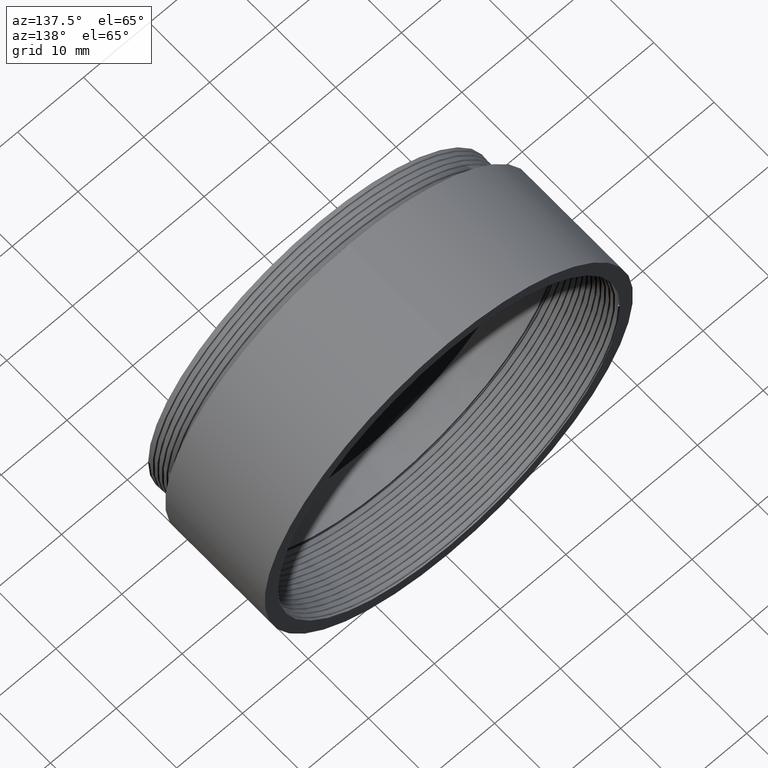
[diagram: clean part render]
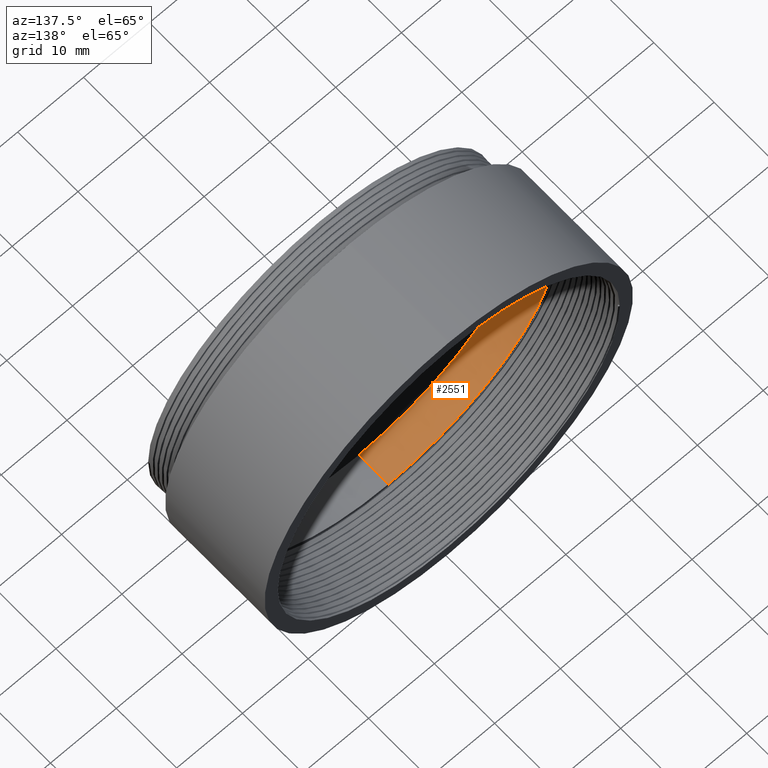
[diagram: same view with one face highlighted and labeled with its STEP entity id]
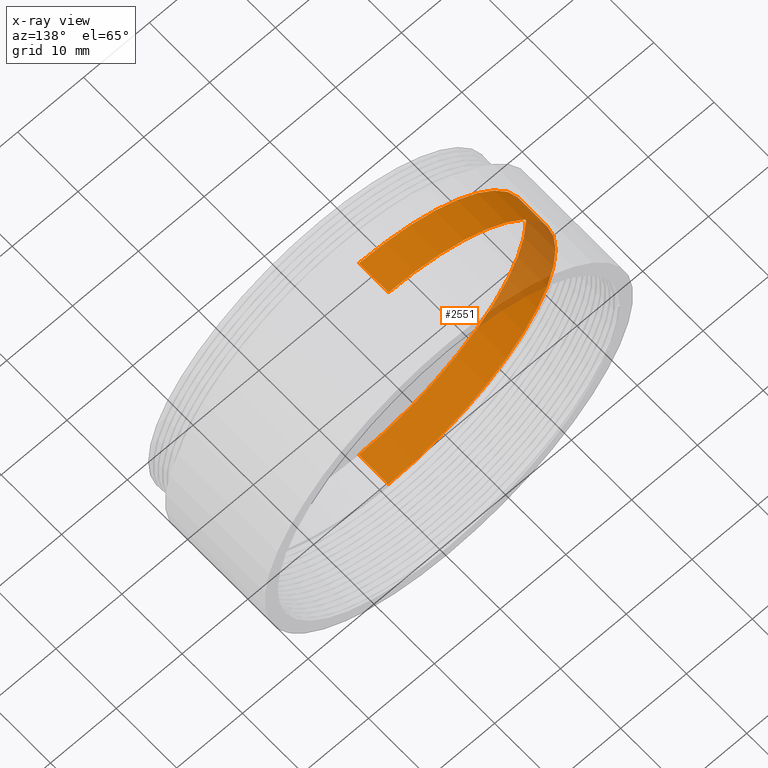
[diagram: x-ray of the same camera — body ghosted, the highlighted face saturated]
A machine part, auxiliary view. The second image highlights one B-rep face of the part: STEP entity #2551.
The next image is the same camera in x-ray: the body ghosted, the highlighted face saturated — about 17% of this face is hidden behind the body in this view.
In plain terms, the highlighted cylindrical surface (partial cylindrical patch) has radius 25.4 mm, axis along (-0, -1, -0).
Its self-contained STEP definition (entity closure, byte-faithful):
#114 = DIRECTION ( 'NONE',  ( -0.000000000000000000, -1.000000000000000000, -0.000000000000000000 ) ) ;
#192 = DIRECTION ( 'NONE',  ( 0.000000000000000000, 0.000000000000000000, -1.000000000000000000 ) ) ;
#274 = CARTESIAN_POINT ( 'NONE',  ( 3.110602869834276865E-15, 6.581606431413368874, 25.39999999999999858 ) ) ;
#275 = CARTESIAN_POINT ( 'NONE',  ( 0.000000000000000000, 0.000000000000000000, 0.000000000000000000 ) ) ;
#498 = EDGE_CURVE ( 'NONE', #4635, #4556, #4825, .T. ) ;
#554 = DIRECTION ( 'NONE',  ( -0.000000000000000000, -1.000000000000000000, -0.000000000000000000 ) ) ;
#605 = CIRCLE ( 'NONE', #4155, 25.39999999999999858 ) ;
#756 = CARTESIAN_POINT ( 'NONE',  ( 3.110602869834276865E-15, 0.000000000000000000, 25.39999999999999858 ) ) ;
#1064 = ORIENTED_EDGE ( 'NONE', *, *, #1875, .T. ) ;
#1091 = EDGE_CURVE ( 'NONE', #4635, #5280, #4564, .T. ) ;
#1296 = VECTOR ( 'NONE', #554, 1000.000000000000000 ) ;
#1875 = EDGE_CURVE ( 'NONE', #5280, #2033, #605, .T. ) ;
#2033 = VERTEX_POINT ( 'NONE', #3558 ) ;
#2320 = LINE ( 'NONE', #3474, #1296 ) ;
#2325 = EDGE_LOOP ( 'NONE', ( #3599, #3921, #1064, #2502 ) ) ;
#2399 = DIRECTION ( 'NONE',  ( 0.000000000000000000, 0.000000000000000000, -1.000000000000000000 ) ) ;
#2461 = DIRECTION ( 'NONE',  ( -0.000000000000000000, -1.000000000000000000, -0.000000000000000000 ) ) ;
#2502 = ORIENTED_EDGE ( 'NONE', *, *, #4588, .F. ) ;
#2551 = ADVANCED_FACE ( 'NONE', ( #3634 ), #3156, .F. ) ;
#2769 = DIRECTION ( 'NONE',  ( -0.000000000000000000, -1.000000000000000000, -0.000000000000000000 ) ) ;
#2951 = AXIS2_PLACEMENT_3D ( 'NONE', #3257, #4110, #2399 ) ;
#3156 = CYLINDRICAL_SURFACE ( 'NONE', #3377, 25.39999999999999858 ) ;
#3257 = CARTESIAN_POINT ( 'NONE',  ( 0.000000000000000000, 11.48367084504014812, 0.000000000000000000 ) ) ;
#3377 = AXIS2_PLACEMENT_3D ( 'NONE', #275, #2769, #192 ) ;
#3474 = CARTESIAN_POINT ( 'NONE',  ( 0.000000000000000000, 0.000000000000000000, -25.39999999999999858 ) ) ;
#3558 = CARTESIAN_POINT ( 'NONE',  ( 0.000000000000000000, 6.581606431413368874, -25.39999999999999858 ) ) ;
#3599 = ORIENTED_EDGE ( 'NONE', *, *, #498, .F. ) ;
#3634 = FACE_OUTER_BOUND ( 'NONE', #2325, .T. ) ;
#3921 = ORIENTED_EDGE ( 'NONE', *, *, #1091, .T. ) ;
#3931 = VECTOR ( 'NONE', #2461, 1000.000000000000000 ) ;
#3970 = DIRECTION ( 'NONE',  ( 0.000000000000000000, 0.000000000000000000, -1.000000000000000000 ) ) ;
#4110 = DIRECTION ( 'NONE',  ( -0.000000000000000000, -1.000000000000000000, -0.000000000000000000 ) ) ;
#4155 = AXIS2_PLACEMENT_3D ( 'NONE', #4806, #114, #3970 ) ;
#4556 = VERTEX_POINT ( 'NONE', #5033 ) ;
#4564 = LINE ( 'NONE', #756, #3931 ) ;
#4588 = EDGE_CURVE ( 'NONE', #4556, #2033, #2320, .T. ) ;
#4635 = VERTEX_POINT ( 'NONE', #5198 ) ;
#4806 = CARTESIAN_POINT ( 'NONE',  ( 0.000000000000000000, 6.581606431413368874, 0.000000000000000000 ) ) ;
#4825 = CIRCLE ( 'NONE', #2951, 25.39999999999999858 ) ;
#5033 = CARTESIAN_POINT ( 'NONE',  ( 0.000000000000000000, 11.48367084504014812, -25.39999999999999858 ) ) ;
#5198 = CARTESIAN_POINT ( 'NONE',  ( 3.110602869834276865E-15, 11.48367084504014812, 25.39999999999999858 ) ) ;
#5280 = VERTEX_POINT ( 'NONE', #274 ) ;